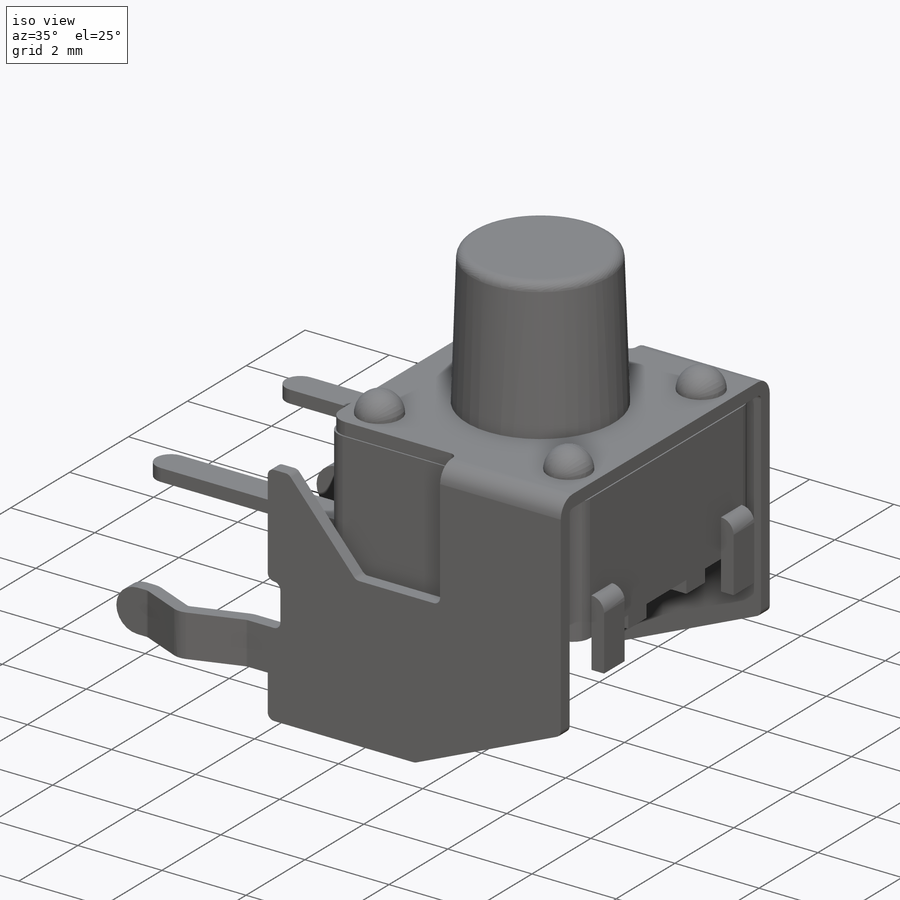
[diagram: iso view]
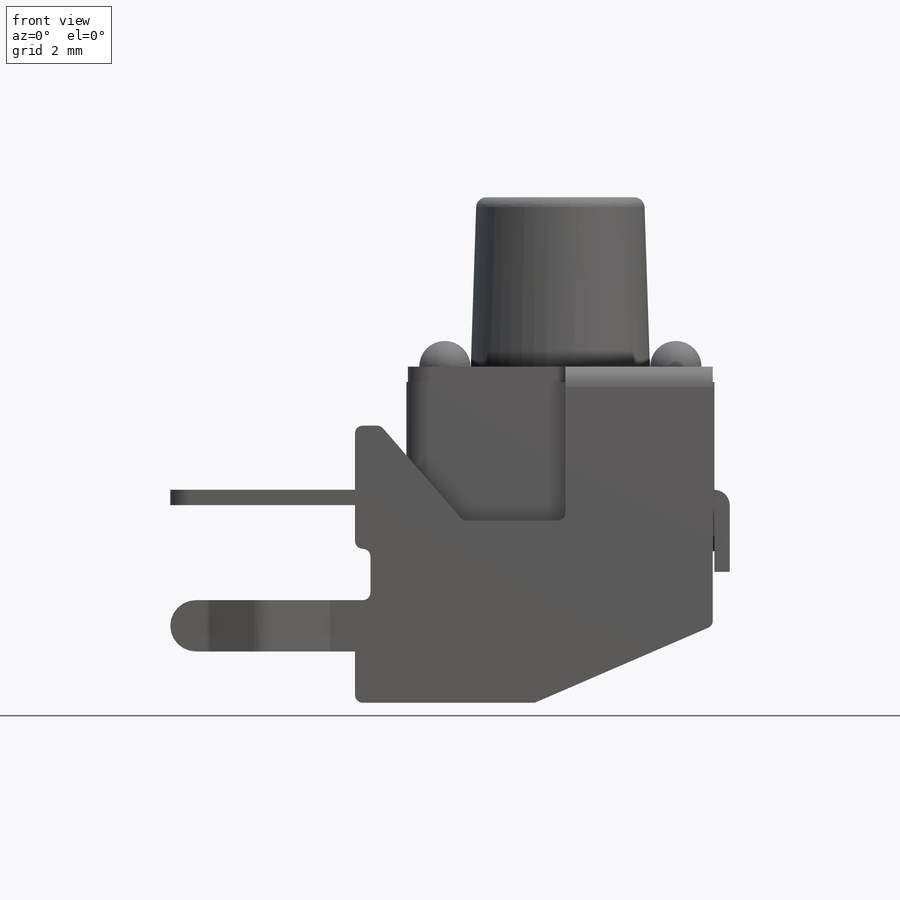
[diagram: front view]
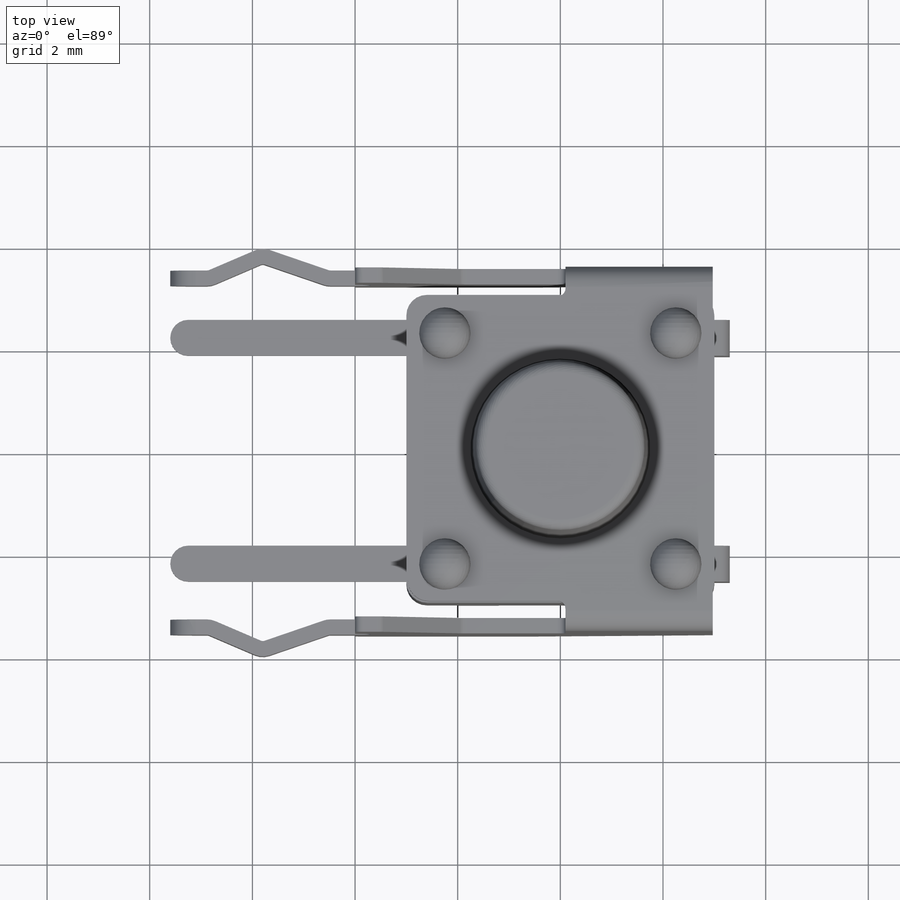
[diagram: top view]
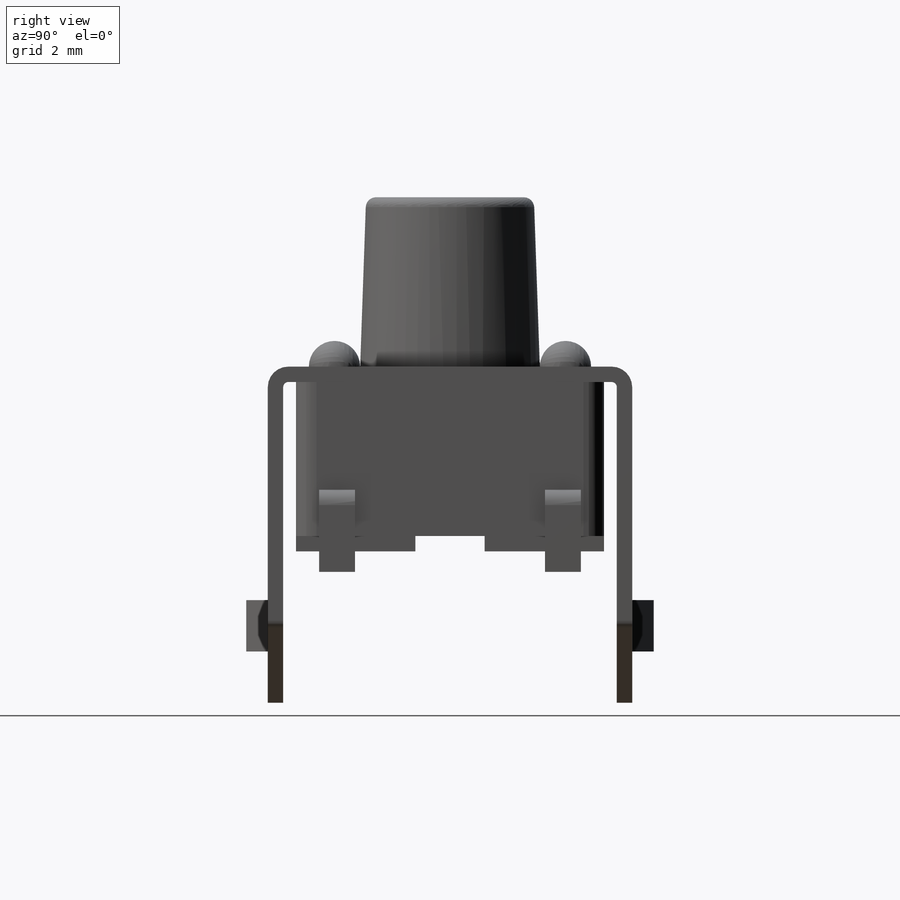
[diagram: right view]
SOLIDWORKS PART (.sldprt)
format: sldprt  version: not decoded by parser v0  size: 1,521,152 bytes
history: native  units: mm
features: sketch x11, fillet x10, extrude x8, plane x3, cut_extrude x2, material x1, mirror x1 (+12 scaffold rows collapsed)
feature tree (48):
  scaffold x12  (default folders/planes/origin — collapsed)
  material  "Material <not specified>"
  sketch  "Sketch1"  dims[D1=6.0mm D2=6.0mm D3=3.0mm D4=3.0mm]
  extrude  "Extrude1"  Depth=3.3mm
  sketch  "Sketch2"  dims[c1.D2=7.1mm c1.D3=0.1mm c1.D1=0.0mm c2.D2=0.03mm c2.D1=0.03mm]
  extrude  "Extrude2"  Depth=0.3mm
  fillet  "Fillet2"  Radius=0.4mm
  fillet  "Fillet3"  Radius=0.4mm
  sketch  "Sketch4"  dims[D1=3.5mm]
  extrude  "Extrude3"  Depth=3.3mm
  fillet  "Fillet4"  Radius=0.2mm
  sketch  "Sketch5"  dims[D5=0.55mm D1=4.5mm D2=4.5mm D3=2.25mm D4=2.25mm]
  extrude  "Extrude4"  Depth=0.5mm
  fillet  "Fillet5"  Radius=0.5mm
  sketch  "Sketch6"  dims[D1=2.6mm D2=1.3mm D3=0.8mm D4=1.8mm D5=1.8mm D6=1.35mm D7=0.675mm]
  cut_extrude  "Cut-Extrude1"  Depth=0.3mm
  plane  "Plane1"  Offset=2.2mm
  plane  "Plane2"  Offset=2.2mm
  sketch  "Sketch7"  dims[c1.D1=0.3mm c1.D2=0.3mm c1.D3=7.6mm c1.D4=3.8mm c1.D5=0.3mm c1.D6=0.15mm c1.D7=2.0mm c2.D3=6.85mm c2.D2=0.3mm c2.D4=4.0mm c3.D3=0.3mm c3.D2=5.14mm c4.D2=90.0deg c5.D2=2.55mm c5.D1=0.3mm c5.D5=10.6mm c5.D6=2.55mm c5.D7=2.25mm c6.D2=2.55mm c6.D4=4.0mm]
  extrude  "Extrude5"  Depth=0.35mm
  sketch  "Sketch8"  dims[D1=0.0mm]
  extrude  "Extrude6"  Depth=0.35mm
  fillet  "Fillet7"  Radius=0.3mm
  sketch  "Sketch9"  dims[D1=0.8mm D2=0.4mm]
  cut_extrude  "Cut-Extrude2"  Depth=0.2mm
  sketch  "Sketch10"  dims[D1=4.0mm D2=1.0mm D3=2.5mm D4=4.0mm D5=1.0mm D6=0.3mm D7=0.5mm D8=0.5mm D9=2.4mm D10=2.0mm D11=3.0mm D12=1.5mm D13=0.5mm]
  extrude  "Extrude7"  Depth=0.3mm
  sketch  "Sketch11"  dims[c1.D1=~0.671954mm c2.D1=~4.893771deg c3.D1=0.3mm c3.D2=0.3mm c3.D3=0.7mm c3.D4=2.8mm c4.D3=1.8mm c4.D4=2.8mm c4.D5=4.0mm]
  extrude  "Extrude8"  [1 undecoded]
  mirror  "Mirror1"
  fillet  "Fillet8"  Radius=0.1mm
  fillet  "Fillet9"  Radius=0.4mm
  fillet  "Fillet10"  Radius=0.35mm
  fillet  "Fillet11"  Radius=0.5mm
  fillet  "Fillet12"  Radius=0.15mm
  plane  "Board Plane"  Offset=4.1mm
  sketch  "Component_Outline"
decode coverage: 29 of 32 modeling features carry decoded parameters
note: ~ marks probable driven/reference dimensions
note: 1 parameter value undecoded
note: suppression state not decoded; provenance and decode notes live in map.json
